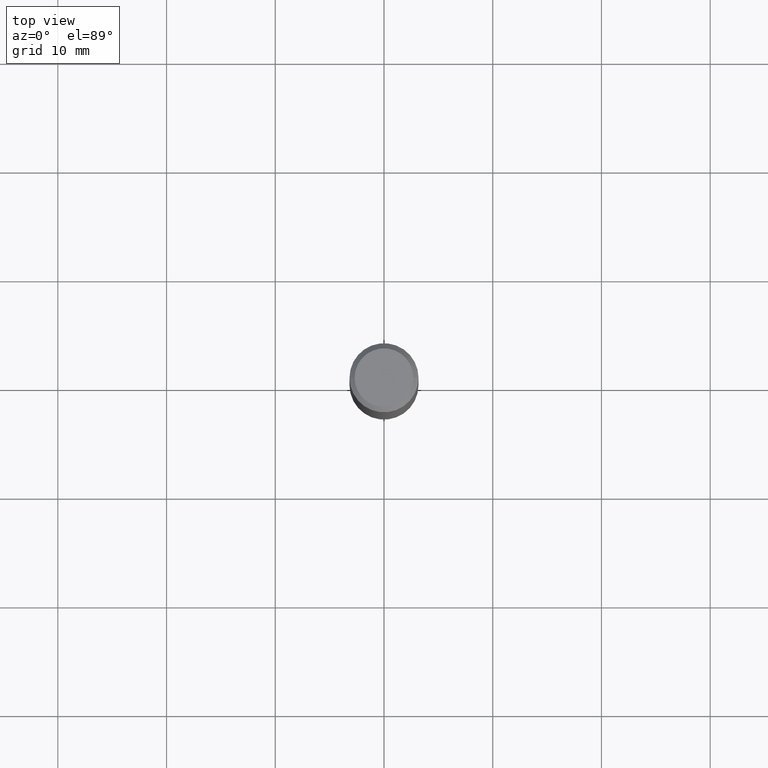
[diagram: clean part render]
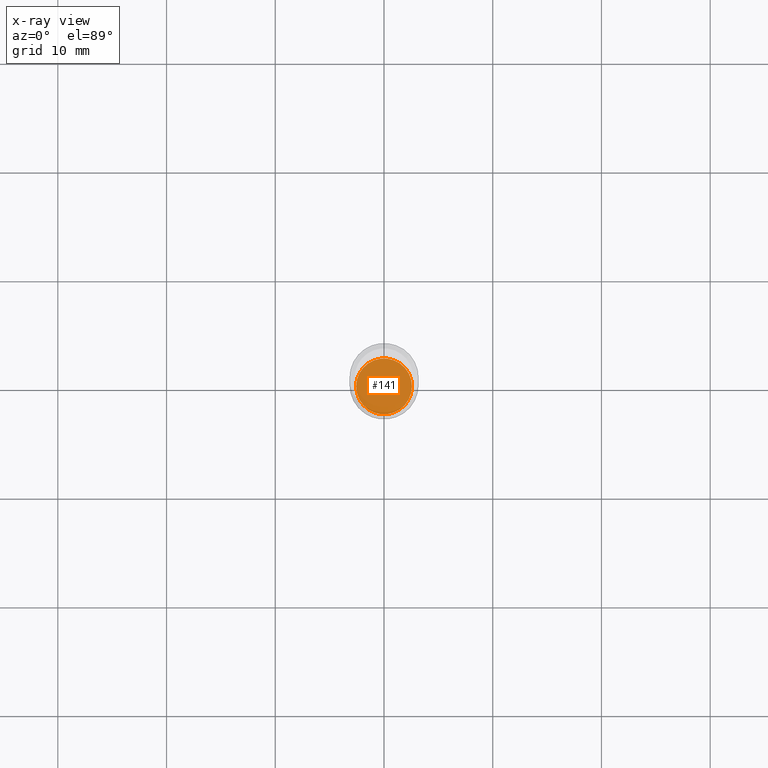
[diagram: x-ray — body ghosted, one internal face saturated and labeled with its STEP entity id]
A machine part, top view, then the same camera in x-ray: the body is ghosted and one INTERNAL B-rep face — a face not visible from any outside direction — is saturated and labeled: STEP entity #141.
In plain terms, the highlighted planar face has unit normal (-0, 0, 1).
Its self-contained STEP definition (entity closure, byte-faithful):
#5 = AXIS2_PLACEMENT_3D ( 'NONE', #257, #165, #61 ) ;
#11 = DIRECTION ( 'NONE',  ( -2.438088387897960049E-29, 3.491481338843145188E-15, 1.000000000000000000 ) ) ;
#30 = AXIS2_PLACEMENT_3D ( 'NONE', #305, #112, #413 ) ;
#41 = CARTESIAN_POINT ( 'NONE',  ( 0.1010500000000000009, -7.088405414119352347E-15, -1.828100000000000058 ) ) ;
#45 = CIRCLE ( 'NONE', #30, 0.1010500000000000009 ) ;
#47 = FACE_OUTER_BOUND ( 'NONE', #113, .T. ) ;
#61 = DIRECTION ( 'NONE',  ( 1.000000000000000000, -6.982962677686269077E-15, 0.000000000000000000 ) ) ;
#68 = AXIS2_PLACEMENT_3D ( 'NONE', #431, #11, #159 ) ;
#92 = ORIENTED_EDGE ( 'NONE', *, *, #290, .F. ) ;
#109 = ORIENTED_EDGE ( 'NONE', *, *, #404, .F. ) ;
#112 = DIRECTION ( 'NONE',  ( -2.445468806185136597E-29, 3.491481338843145583E-15, 1.000000000000000000 ) ) ;
#113 = EDGE_LOOP ( 'NONE', ( #109, #92 ) ) ;
#141 = ADVANCED_FACE ( 'NONE', ( #47 ), #351, .F. ) ;
#159 = DIRECTION ( 'NONE',  ( 1.000000000000000000, -6.982962677686265922E-15, 4.876176775795935793E-29 ) ) ;
#165 = DIRECTION ( 'NONE',  ( -2.445468806185136597E-29, 3.491481338843145583E-15, 1.000000000000000000 ) ) ;
#216 = CARTESIAN_POINT ( 'NONE',  ( -0.1010500000000000009, -5.662124373879462324E-15, -1.828100000000000058 ) ) ;
#248 = VERTEX_POINT ( 'NONE', #41 ) ;
#257 = CARTESIAN_POINT ( 'NONE',  ( 4.470561524587048986E-29, -6.382777035539155361E-15, -1.828100000000000058 ) ) ;
#290 = EDGE_CURVE ( 'NONE', #375, #248, #45, .T. ) ;
#305 = CARTESIAN_POINT ( 'NONE',  ( 4.470561524587048986E-29, -6.382777035539155361E-15, -1.828100000000000058 ) ) ;
#351 = PLANE ( 'NONE',  #68 ) ;
#375 = VERTEX_POINT ( 'NONE', #216 ) ;
#382 = CIRCLE ( 'NONE', #5, 0.1010500000000000009 ) ;
#404 = EDGE_CURVE ( 'NONE', #248, #375, #382, .T. ) ;
#413 = DIRECTION ( 'NONE',  ( 1.000000000000000000, -6.982962677686269077E-15, 0.000000000000000000 ) ) ;
#431 = CARTESIAN_POINT ( 'NONE',  ( 4.470561524587048986E-29, -6.382777035539155361E-15, -1.828100000000000058 ) ) ;